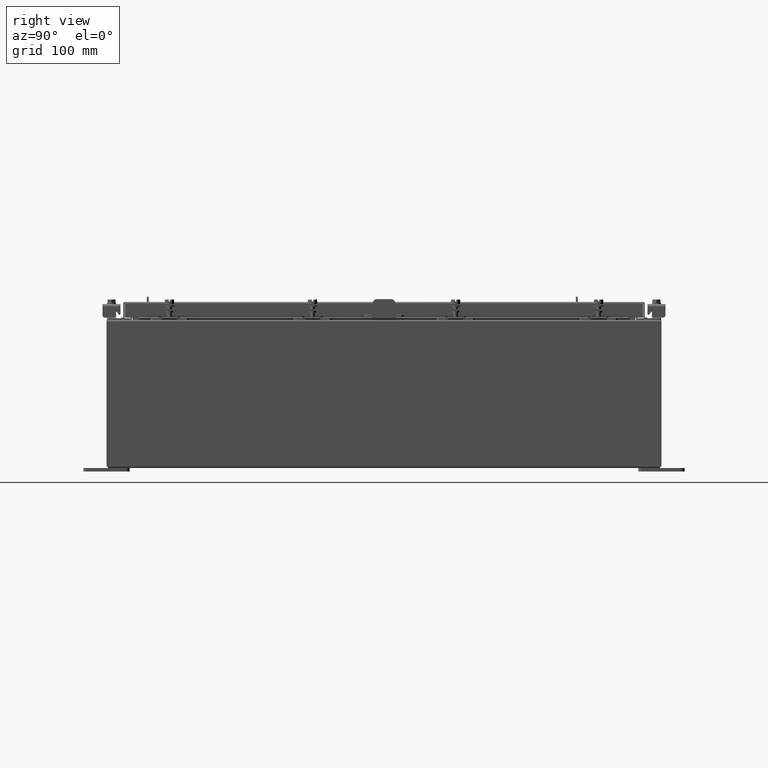
[diagram: clean part render]
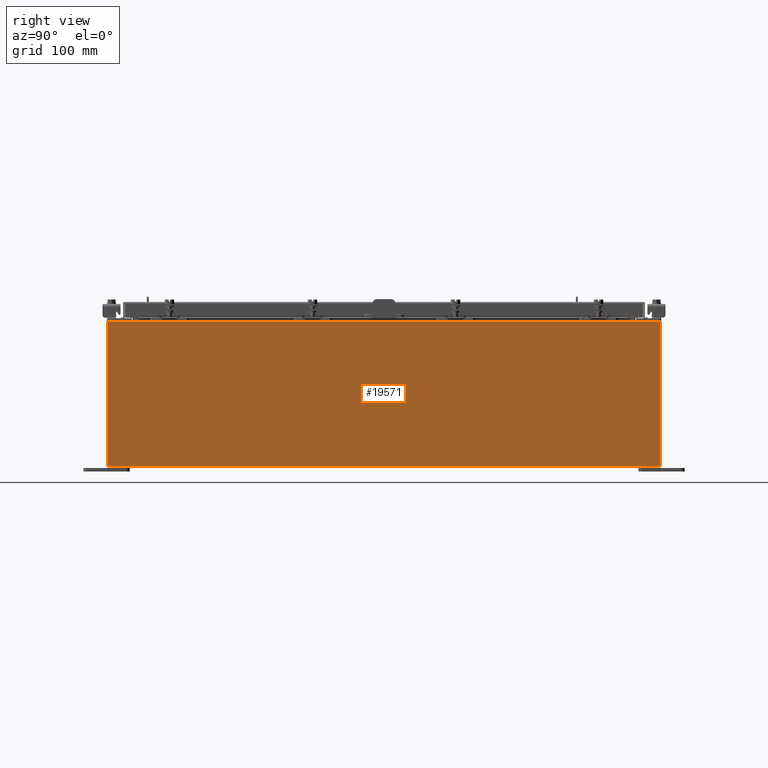
[diagram: same view with one face highlighted and labeled with its STEP entity id]
A machine part, right view. The second image highlights one B-rep face of the part: STEP entity #19571.
In plain terms, the highlighted planar face has unit normal (-1, 0, 0).
Its self-contained STEP definition (entity closure, byte-faithful):
#171 = AXIS2_PLACEMENT_3D ( 'NONE', #19876, #9152, #21706 ) ;
#567 = CARTESIAN_POINT ( 'NONE',  ( 10.00000000000002800, 14.92530000000000700, 7.837599999999992100 ) ) ;
#2062 = FACE_OUTER_BOUND ( 'NONE', #6687, .T. ) ;
#3658 = VECTOR ( 'NONE', #10378, 39.37007874015748100 ) ;
#3990 = LINE ( 'NONE', #22616, #22467 ) ;
#5558 = PLANE ( 'NONE',  #171 ) ;
#6071 = CARTESIAN_POINT ( 'NONE',  ( 10.00000000000000000, 14.92530000000000500, 0.01299999999999984700 ) ) ;
#6687 = EDGE_LOOP ( 'NONE', ( #20761, #7838, #22664, #17963 ) ) ;
#7428 = CARTESIAN_POINT ( 'NONE',  ( 10.00000000000002800, -14.92529999999999800, 7.837599999999998300 ) ) ;
#7659 = VERTEX_POINT ( 'NONE', #567 ) ;
#7838 = ORIENTED_EDGE ( 'NONE', *, *, #21115, .T. ) ;
#8392 = LINE ( 'NONE', #15701, #3658 ) ;
#9152 = DIRECTION ( 'NONE',  ( -1.000000000000000000, 0.0000000000000000000, 3.584876173029202900E-015 ) ) ;
#9465 = VERTEX_POINT ( 'NONE', #23004 ) ;
#10378 = DIRECTION ( 'NONE',  ( -3.584876173029202900E-015, 0.0000000000000000000, -1.000000000000000000 ) ) ;
#11116 = CARTESIAN_POINT ( 'NONE',  ( 10.00000000000000000, 14.92530000000000500, -3.610957538630361200E-014 ) ) ;
#11362 = DIRECTION ( 'NONE',  ( 3.584876173029202900E-015, 0.0000000000000000000, 1.000000000000000000 ) ) ;
#11929 = DIRECTION ( 'NONE',  ( -0.0000000000000000000, -1.000000000000000000, -0.0000000000000000000 ) ) ;
#12235 = VERTEX_POINT ( 'NONE', #6071 ) ;
#12436 = VECTOR ( 'NONE', #11362, 39.37007874015748100 ) ;
#12796 = EDGE_CURVE ( 'NONE', #12235, #7659, #17172, .T. ) ;
#14288 = EDGE_CURVE ( 'NONE', #12235, #9465, #3990, .T. ) ;
#15701 = CARTESIAN_POINT ( 'NONE',  ( 10.00000000000000000, -14.92529999999999600, -3.610957538630361200E-014 ) ) ;
#16428 = CARTESIAN_POINT ( 'NONE',  ( 10.00000000000002800, 14.92530000000000700, 7.837599999999992100 ) ) ;
#17172 = LINE ( 'NONE', #11116, #12436 ) ;
#17577 = LINE ( 'NONE', #16428, #21821 ) ;
#17660 = VERTEX_POINT ( 'NONE', #7428 ) ;
#17963 = ORIENTED_EDGE ( 'NONE', *, *, #12796, .T. ) ;
#18252 = DIRECTION ( 'NONE',  ( -0.0000000000000000000, -1.000000000000000000, -0.0000000000000000000 ) ) ;
#19571 = ADVANCED_FACE ( 'NONE', ( #2062 ), #5558, .F. ) ;
#19876 = CARTESIAN_POINT ( 'NONE',  ( 10.00000000000000000, 0.0000000000000000000, -3.610957538630361200E-014 ) ) ;
#20761 = ORIENTED_EDGE ( 'NONE', *, *, #21997, .T. ) ;
#21115 = EDGE_CURVE ( 'NONE', #17660, #9465, #8392, .T. ) ;
#21706 = DIRECTION ( 'NONE',  ( 3.584876173029202900E-015, 0.0000000000000000000, 1.000000000000000000 ) ) ;
#21821 = VECTOR ( 'NONE', #18252, 39.37007874015748100 ) ;
#21997 = EDGE_CURVE ( 'NONE', #7659, #17660, #17577, .T. ) ;
#22467 = VECTOR ( 'NONE', #11929, 39.37007874015748100 ) ;
#22616 = CARTESIAN_POINT ( 'NONE',  ( 10.00000000000000000, -14.92529999999999600, 0.01299999999999984700 ) ) ;
#22664 = ORIENTED_EDGE ( 'NONE', *, *, #14288, .F. ) ;
#23004 = CARTESIAN_POINT ( 'NONE',  ( 10.00000000000000000, -14.92529999999999600, 0.01299999999999983600 ) ) ;